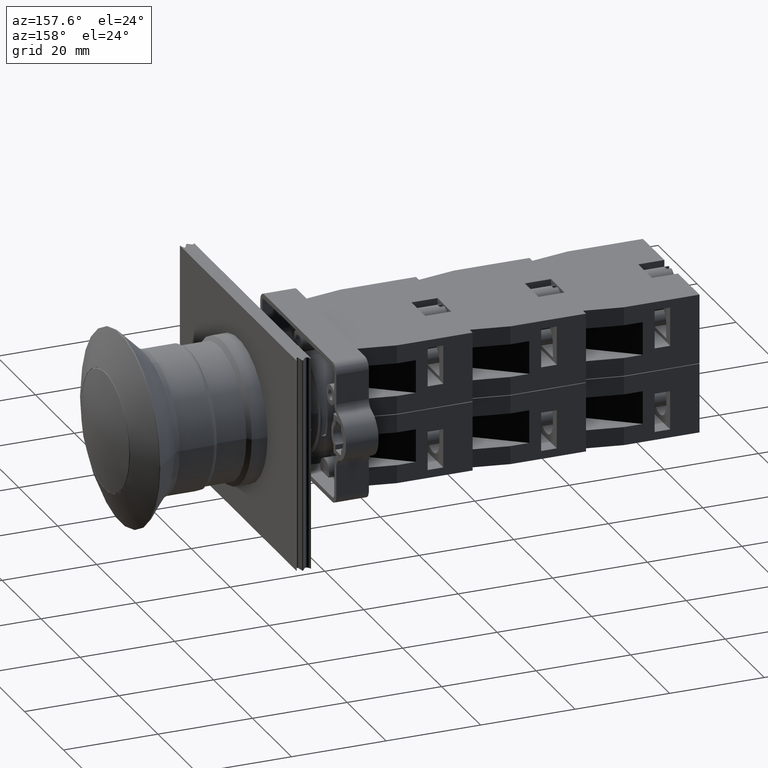
[diagram: clean part render]
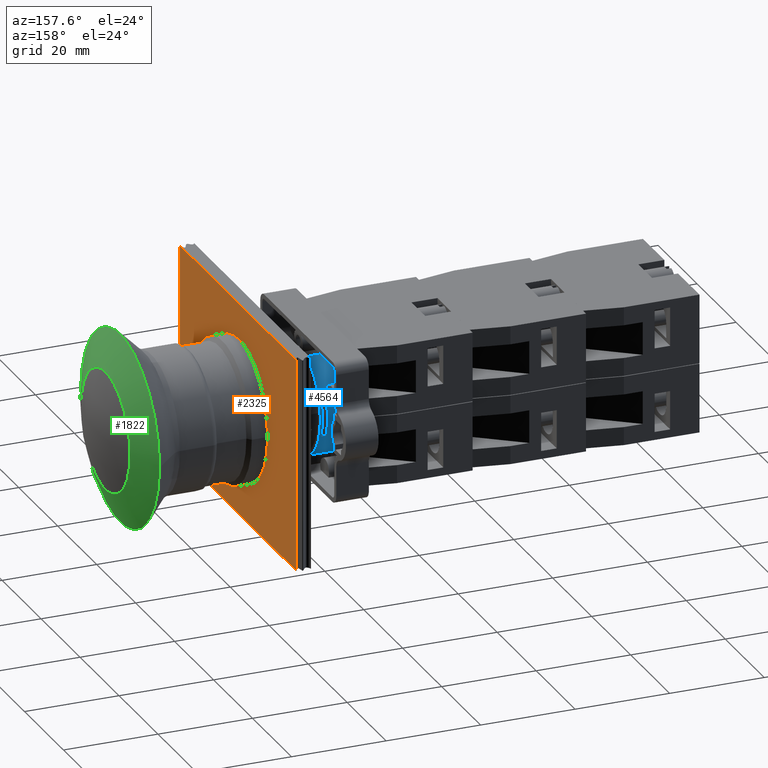
[diagram: same view with three faces highlighted in distinct colors, each labeled with its STEP entity id]
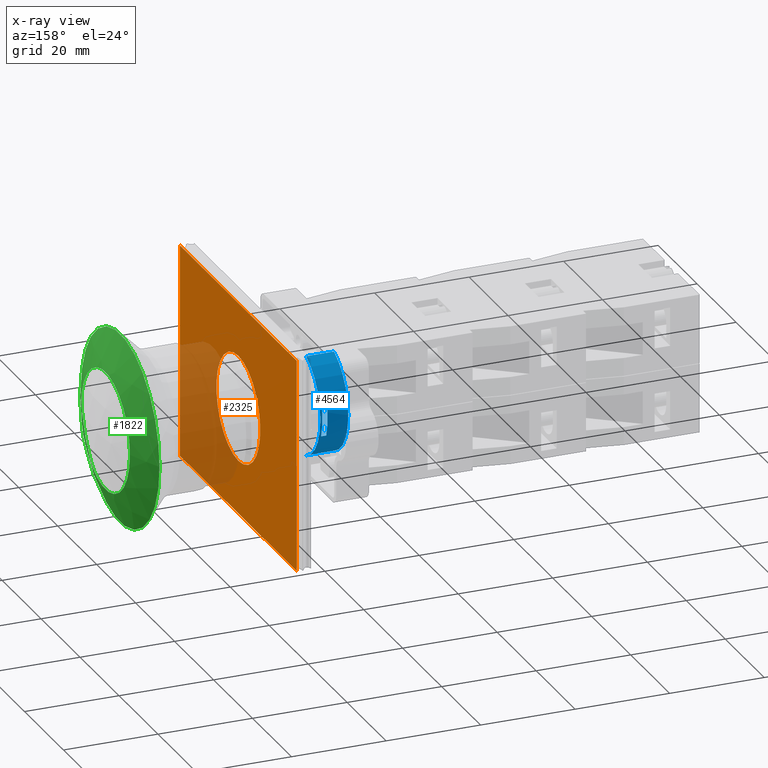
[diagram: x-ray of the same camera — body ghosted, the three highlighted faces saturated]
A machine part, auxiliary view with three faces highlighted in distinct colors.
The next image is the same camera in x-ray (body ghosted, the three faces saturated) — at least one of them is partly hidden behind the body in this view.
Their STEP definitions:

[orange] entity #2325 — the highlighted planar face has unit normal (1, -0, 0).
#2230=CARTESIAN_POINT('',(-12.704183619849175,-32.725398273954283,11.250000000000000));
#2231=VERTEX_POINT('',#2230);
#2232=CARTESIAN_POINT('',(-12.704183619849179,-32.725398273954283,22.500000000000000));
#2233=DIRECTION('',(-1.0,0.0,0.0));
#2234=DIRECTION('',(0.0,0.0,1.0));
#2235=AXIS2_PLACEMENT_3D('',#2232,#2233,#2234);
#2236=CIRCLE('',#2235,11.250000000000000);
#2237=EDGE_CURVE('',#2231,#2231,#2236,.T.);
#2255=CARTESIAN_POINT('',(-12.704183619849179,-2.725398273954287,45.0));
#2256=VERTEX_POINT('',#2255);
#2265=CARTESIAN_POINT('',(-12.704183619849179,-2.725398273954287,0.0));
#2266=VERTEX_POINT('',#2265);
#2267=CARTESIAN_POINT('',(-12.704183619849179,-2.725398273954287,0.0));
#2268=DIRECTION('',(0.0,0.0,1.0));
#2269=VECTOR('',#2268,45.0);
#2270=LINE('',#2267,#2269);
#2271=EDGE_CURVE('',#2266,#2256,#2270,.T.);
#2292=CARTESIAN_POINT('',(-12.704183619849179,-2.725398273954287,0.0));
#2293=DIRECTION('',(1.0,0.0,0.0));
#2294=DIRECTION('',(0.0,0.0,-1.0));
#2295=AXIS2_PLACEMENT_3D('',#2292,#2293,#2294);
#2296=PLANE('',#2295);
#2297=CARTESIAN_POINT('',(-12.704183619849172,-62.725398273954283,45.0));
#2298=VERTEX_POINT('',#2297);
#2299=CARTESIAN_POINT('',(-12.704183619849179,-2.725398273954287,45.0));
#2300=DIRECTION('',(0.0,-1.0,0.0));
#2301=VECTOR('',#2300,60.0);
#2302=LINE('',#2299,#2301);
#2303=EDGE_CURVE('',#2256,#2298,#2302,.T.);
#2304=ORIENTED_EDGE('',*,*,#2303,.T.);
#2305=CARTESIAN_POINT('',(-12.704183619849172,-62.725398273954283,0.0));
#2306=VERTEX_POINT('',#2305);
#2307=CARTESIAN_POINT('',(-12.704183619849172,-62.725398273954283,0.0));
#2308=DIRECTION('',(0.0,0.0,1.0));
#2309=VECTOR('',#2308,45.0);
#2310=LINE('',#2307,#2309);
#2311=EDGE_CURVE('',#2306,#2298,#2310,.T.);
#2312=ORIENTED_EDGE('',*,*,#2311,.F.);
#2313=CARTESIAN_POINT('',(-12.704183619849172,-62.725398273954283,0.0));
#2314=DIRECTION('',(0.0,1.0,0.0));
#2315=VECTOR('',#2314,60.0);
#2316=LINE('',#2313,#2315);
#2317=EDGE_CURVE('',#2306,#2266,#2316,.T.);
#2318=ORIENTED_EDGE('',*,*,#2317,.T.);
#2319=ORIENTED_EDGE('',*,*,#2271,.T.);
#2320=EDGE_LOOP('',(#2304,#2312,#2318,#2319));
#2321=FACE_OUTER_BOUND('',#2320,.T.);
#2322=ORIENTED_EDGE('',*,*,#2237,.T.);
#2323=EDGE_LOOP('',(#2322));
#2324=FACE_BOUND('',#2323,.T.);
#2325=ADVANCED_FACE('',(#2321,#2324),#2296,.T.);

[blue] entity #4564 — the highlighted cylindrical surface (partial cylindrical patch) has radius 11.35 mm, axis along (1, -0, 0).
#3386=CARTESIAN_POINT('',(-21.812615408991540,-0.050578387146383,0.0));
#3387=VERTEX_POINT('',#3386);
#3388=CARTESIAN_POINT('',(-0.566637799102790,-0.050578387146381,0.0));
#3389=VERTEX_POINT('',#3388);
#3390=CARTESIAN_POINT('',(-11.189626604047165,-4.047403233199363,0.0));
#3391=DIRECTION('',(0.0,0.0,-1.0));
#3392=DIRECTION('',(1.0,0.0,0.0));
#3393=AXIS2_PLACEMENT_3D('',#3390,#3391,#3392);
#3394=CIRCLE('',#3393,11.349999999999998);
#3395=EDGE_CURVE('',#3387,#3389,#3394,.T.);
#4118=CARTESIAN_POINT('',(-0.566637799102790,-0.050578387146381,5.900000000000000));
#4119=VERTEX_POINT('',#4118);
#4126=CARTESIAN_POINT('',(-21.812615408991540,-0.050578387146383,5.900000000000000));
#4127=VERTEX_POINT('',#4126);
#4128=CARTESIAN_POINT('',(-11.189626604047165,-4.047403233199363,5.900000000000000));
#4129=DIRECTION('',(0.0,0.0,-1.0));
#4130=DIRECTION('',(1.0,0.0,0.0));
#4131=AXIS2_PLACEMENT_3D('',#4128,#4129,#4130);
#4132=CIRCLE('',#4131,11.349999999999998);
#4133=EDGE_CURVE('',#4127,#4119,#4132,.T.);
#4408=CARTESIAN_POINT('',(-15.061382272053898,6.621805174515694,0.429342686118525));
#4409=VERTEX_POINT('',#4408);
#4410=CARTESIAN_POINT('',(-15.061382272064957,6.621805174511665,1.517273721474545));
#4411=VERTEX_POINT('',#4410);
#4412=CARTESIAN_POINT('',(-15.061382272053898,6.621805174515694,0.429342686118525));
#4413=DIRECTION('',(-1.016572E-011,-3.703155E-012,1.0));
#4414=VECTOR('',#4413,1.087931035356020);
#4415=LINE('',#4412,#4414);
#4416=EDGE_CURVE('',#4409,#4411,#4415,.T.);
#4454=CARTESIAN_POINT('',(-7.317870936040426,6.621805174515695,0.429342686118515));
#4455=VERTEX_POINT('',#4454);
#4456=CARTESIAN_POINT('',(-11.189626604047165,-4.047403233199363,0.429342686118512));
#4457=DIRECTION('',(0.0,0.0,1.0));
#4458=DIRECTION('',(1.0,0.0,0.0));
#4459=AXIS2_PLACEMENT_3D('',#4456,#4457,#4458);
#4460=CIRCLE('',#4459,11.349999999999998);
#4461=EDGE_CURVE('',#4455,#4409,#4460,.T.);
#4494=CARTESIAN_POINT('',(-7.317870936029367,6.621805174511664,1.517273721474545));
#4495=VERTEX_POINT('',#4494);
#4496=CARTESIAN_POINT('',(-11.189626604047165,-4.047403233199363,1.517273721474546));
#4497=DIRECTION('',(0.0,0.0,-1.0));
#4498=DIRECTION('',(1.0,0.0,0.0));
#4499=AXIS2_PLACEMENT_3D('',#4496,#4497,#4498);
#4500=CIRCLE('',#4499,11.349999999999998);
#4501=EDGE_CURVE('',#4411,#4495,#4500,.T.);
#4526=CARTESIAN_POINT('',(-7.317870936040426,6.621805174515695,0.429342686118515));
#4527=DIRECTION('',(1.016490E-011,-3.704788E-012,1.0));
#4528=VECTOR('',#4527,1.087931035356030);
#4529=LINE('',#4526,#4528);
#4530=EDGE_CURVE('',#4495,#4455,#4529,.F.);
#4537=CARTESIAN_POINT('',(-11.189626604047165,-4.047403233199363,6.900000000000000));
#4538=DIRECTION('',(0.0,0.0,-1.0));
#4539=DIRECTION('',(1.0,0.0,0.0));
#4540=AXIS2_PLACEMENT_3D('',#4537,#4538,#4539);
#4541=CYLINDRICAL_SURFACE('',#4540,11.349999999999998);
#4542=ORIENTED_EDGE('',*,*,#3395,.F.);
#4543=CARTESIAN_POINT('',(-21.812615408991540,-0.050578387146383,0.0));
#4544=DIRECTION('',(0.0,0.0,1.0));
#4545=VECTOR('',#4544,5.900000000000000);
#4546=LINE('',#4543,#4545);
#4547=EDGE_CURVE('',#4127,#3387,#4546,.F.);
#4548=ORIENTED_EDGE('',*,*,#4547,.F.);
#4549=ORIENTED_EDGE('',*,*,#4133,.T.);
#4550=CARTESIAN_POINT('',(-0.566637799102790,-0.050578387146381,5.900000000000000));
#4551=DIRECTION('',(0.0,0.0,-1.0));
#4552=VECTOR('',#4551,5.900000000000000);
#4553=LINE('',#4550,#4552);
#4554=EDGE_CURVE('',#4119,#3389,#4553,.T.);
#4555=ORIENTED_EDGE('',*,*,#4554,.T.);
#4556=EDGE_LOOP('',(#4542,#4548,#4549,#4555));
#4557=FACE_OUTER_BOUND('',#4556,.T.);
#4558=ORIENTED_EDGE('',*,*,#4461,.F.);
#4559=ORIENTED_EDGE('',*,*,#4530,.F.);
#4560=ORIENTED_EDGE('',*,*,#4501,.F.);
#4561=ORIENTED_EDGE('',*,*,#4416,.F.);
#4562=EDGE_LOOP('',(#4558,#4559,#4560,#4561));
#4563=FACE_BOUND('',#4562,.T.);
#4564=ADVANCED_FACE('',(#4557,#4563),#4541,.T.);

[green] entity #1822 — the highlighted spherical surface has radius 42.9695 mm.
#1788=CARTESIAN_POINT('',(15.667878094298802,21.284443144865229,0.0));
#1789=VERTEX_POINT('',#1788);
#1790=CARTESIAN_POINT('',(15.667878094298807,1.129839215727505,0.0));
#1791=DIRECTION('',(1.0,0.0,0.0));
#1792=DIRECTION('',(0.0,1.0,0.0));
#1793=AXIS2_PLACEMENT_3D('',#1790,#1791,#1792);
#1794=CIRCLE('',#1793,20.154603929137728);
#1795=EDGE_CURVE('',#1789,#1789,#1794,.T.);
#1803=CARTESIAN_POINT('',(-22.281675257115516,1.129839215727505,0.0));
#1804=DIRECTION('',(0.0,0.0,1.0));
#1805=DIRECTION('',(1.0,0.0,0.0));
#1806=AXIS2_PLACEMENT_3D('',#1803,#1804,#1805);
#1807=SPHERICAL_SURFACE('',#1806,42.969485208834605);
#1808=CARTESIAN_POINT('',(18.801493224914132,13.721500209791040,0.0));
#1809=VERTEX_POINT('',#1808);
#1810=CARTESIAN_POINT('',(18.801493224914140,1.129839215727505,0.0));
#1811=DIRECTION('',(1.0,0.0,0.0));
#1812=DIRECTION('',(0.0,1.0,0.0));
#1813=AXIS2_PLACEMENT_3D('',#1810,#1811,#1812);
#1814=CIRCLE('',#1813,12.591660994063536);
#1815=EDGE_CURVE('',#1809,#1809,#1814,.T.);
#1816=ORIENTED_EDGE('',*,*,#1815,.F.);
#1817=EDGE_LOOP('',(#1816));
#1818=FACE_OUTER_BOUND('',#1817,.T.);
#1819=ORIENTED_EDGE('',*,*,#1795,.T.);
#1820=EDGE_LOOP('',(#1819));
#1821=FACE_BOUND('',#1820,.T.);
#1822=ADVANCED_FACE('',(#1818,#1821),#1807,.T.);